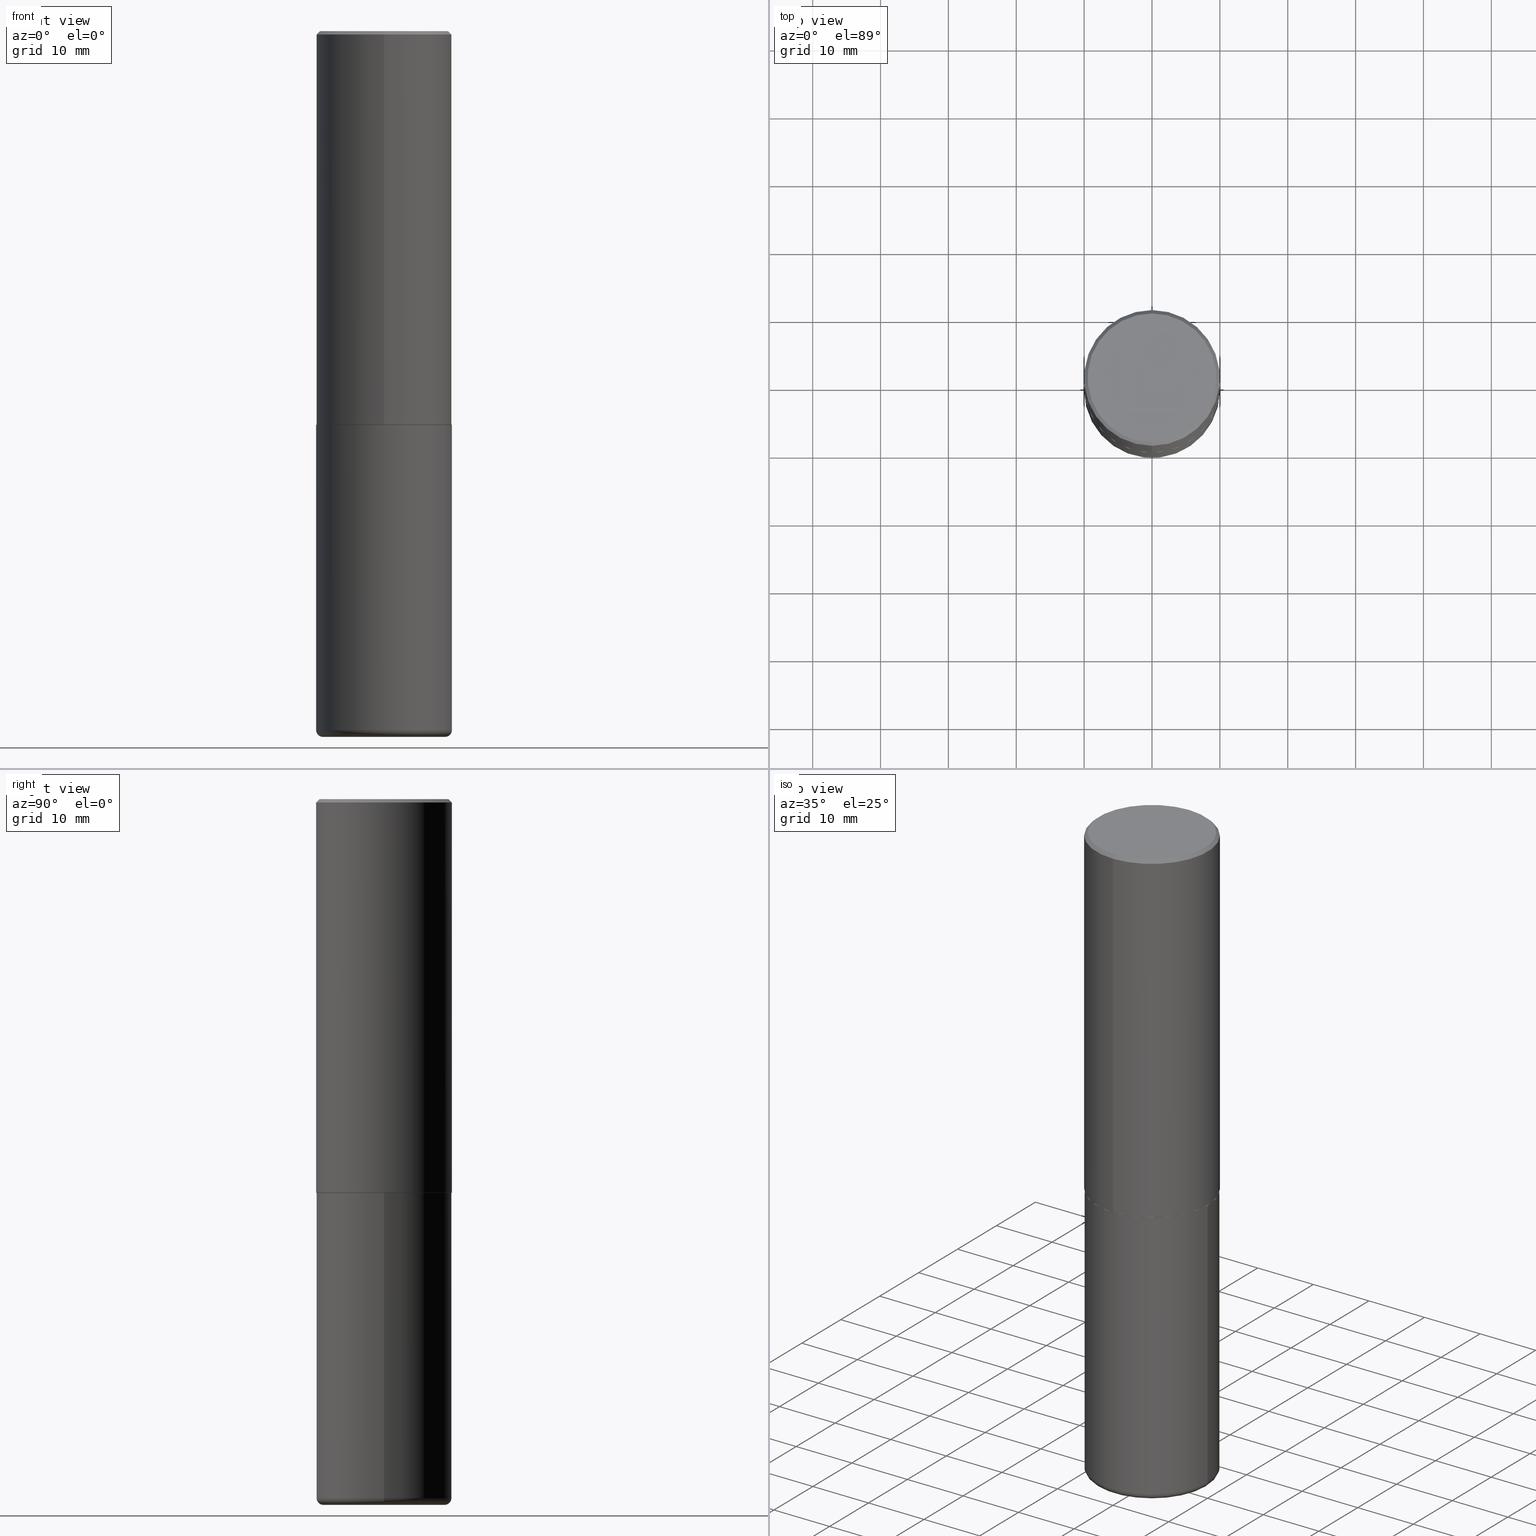
[diagram: canonical four-view strip — front | top / right | iso, engineering-drawing reading convention]
A machine part, canonical four-view strip (front | top / right | iso — engineering-drawing reading convention). The complete STEP part file that produces these views, byte-faithful:
ISO-10303-21;
HEADER;
FILE_DESCRIPTION (( 'STEP AP203' ),
    '1' );
FILE_NAME ('43453.STEP',
    '2024-03-04T04:36:43',
    ( '' ),
    ( '' ),
    'SwSTEP 2.0',
    'SolidWorks 2023',
    '' );
FILE_SCHEMA (( 'CONFIG_CONTROL_DESIGN' ));
ENDSEC;

DATA;
#1 = DATE_AND_TIME ( #300, #9 ) ;
#2 = DIRECTION ( 'NONE',  ( 6.982962677686265133E-15, 1.000000000000000000, -3.491137977679279424E-15 ) ) ;
#3 = DIRECTION ( 'NONE',  ( -4.937700262165053702E-15, -0.7071067811866175168, 0.7071067811864775177 ) ) ;
#4 = EDGE_CURVE ( 'NONE', #279, #59, #263, .T. ) ;
#5 = PERSON ( 'UNSPECIFIED', 'UNSPECIFIED', 'UNSPECIFIED', ('UNSPECIFIED'), ('UNSPECIFIED'), ('UNSPECIFIED') ) ;
#6 = CC_DESIGN_PERSON_AND_ORGANIZATION_ASSIGNMENT ( #261, #61, ( #400 ) ) ;
#7 = AXIS2_PLACEMENT_3D ( 'NONE', #329, #40, #241 ) ;
#8 = PLANE ( 'NONE',  #63 ) ;
#9 = LOCAL_TIME ( 23, 36, 43.00000000000000000, #169 ) ;
#10 = DIRECTION ( 'NONE',  ( 2.446545274162745109E-29, -3.489939775430457441E-15, -1.000000000000000000 ) ) ;
#11 = CARTESIAN_POINT ( 'NONE',  ( 5.584239588276467211E-29, -7.965787537420020215E-15, -2.282500000000000195 ) ) ;
#12 = PERSON_AND_ORGANIZATION ( #5, #218 ) ;
#13 = CARTESIAN_POINT ( 'NONE',  ( 9.916620555961347550E-29, -1.415830597714284070E-14, -4.055100000000000371 ) ) ;
#14 = AXIS2_PLACEMENT_3D ( 'NONE', #328, #304, #147 ) ;
#15 = LINE ( 'NONE', #52, #283 ) ;
#16 = CC_DESIGN_DATE_AND_TIME_ASSIGNMENT ( #239, #172, ( #293 ) ) ;
#17 =( LENGTH_UNIT ( ) NAMED_UNIT ( * ) SI_UNIT ( $, .METRE. ) );
#18 = ORIENTED_EDGE ( 'NONE', *, *, #41, .T. ) ;
#19 = ADVANCED_FACE ( 'NONE', ( #415 ), #213, .T. ) ;
#20 = CARTESIAN_POINT ( 'NONE',  ( 5.586686133550631183E-29, -7.969277477195450048E-15, -2.283500000000000529 ) ) ;
#21 = CC_DESIGN_APPROVAL ( #186, ( #293 ) ) ;
#22 = AXIS2_PLACEMENT_3D ( 'NONE', #11, #45, #152 ) ;
#23 = DIRECTION ( 'NONE',  ( -2.446545274162745389E-29, 3.489939775430457441E-15, 1.000000000000000000 ) ) ;
#24 = APPROVAL ( #324, 'UNSPECIFIED' ) ;
#25 = EDGE_LOOP ( 'NONE', ( #255, #166 ) ) ;
#26 = DIRECTION ( 'NONE',  ( 2.438088387897960049E-29, -3.491481338843145188E-15, -1.000000000000000000 ) ) ;
#27 = ORIENTED_EDGE ( 'NONE', *, *, #234, .T. ) ;
#28 = ORIENTED_EDGE ( 'NONE', *, *, #339, .F. ) ;
#29 = APPROVAL_PERSON_ORGANIZATION ( #70, #24, #35 ) ;
#30 = PERSON_AND_ORGANIZATION ( #5, #218 ) ;
#31 = ORIENTED_EDGE ( 'NONE', *, *, #405, .F. ) ;
#32 = EDGE_LOOP ( 'NONE', ( #53, #378, #290, #31 ) ) ;
#33 = ORIENTED_EDGE ( 'NONE', *, *, #258, .T. ) ;
#34 = VECTOR ( 'NONE', #197, 39.37007874015748143 ) ;
#35 = APPROVAL_ROLE ( '' ) ;
#36 = PRODUCT_DEFINITION_FORMATION_WITH_SPECIFIED_SOURCE ( 'ANY', '', #400, .NOT_KNOWN. ) ;
#37 = CARTESIAN_POINT ( 'NONE',  ( -2.632373081744935132E-15, -0.3736999999999998101, 1.504234498865758996E-15 ) ) ;
#38 = ADVANCED_FACE ( 'NONE', ( #102 ), #56, .T. ) ;
#39 = CARTESIAN_POINT ( 'NONE',  ( 2.609533152651356226E-15, 0.3736999999999998101, -1.204168491684662434E-15 ) ) ;
#40 = DIRECTION ( 'NONE',  ( -2.445468806185136597E-29, 3.491481338843145583E-15, 1.000000000000000000 ) ) ;
#41 = EDGE_CURVE ( 'NONE', #317, #233, #390, .T. ) ;
#42 = CIRCLE ( 'NONE', #150, 0.3937000000000002720 ) ;
#43 = CARTESIAN_POINT ( 'NONE',  ( -0.3937000000000001054, -1.136089922645532513E-14, -4.055100000000000371 ) ) ;
#44 = CONICAL_SURFACE ( 'NONE', #168, 0.3926999999999999935, 0.7853981633975507526 ) ;
#45 = DIRECTION ( 'NONE',  ( -2.446545274162745389E-29, 3.489939775430457441E-15, 1.000000000000000000 ) ) ;
#46 = PERSON_AND_ORGANIZATION ( #5, #218 ) ;
#47 = DIRECTION ( 'NONE',  ( -2.446545274162745389E-29, 3.489939775430457441E-15, 1.000000000000000000 ) ) ;
#48 = DIRECTION ( 'NONE',  ( 2.438088387897960049E-29, -3.491481338843145188E-15, -1.000000000000000000 ) ) ;
#49 = AXIS2_PLACEMENT_3D ( 'NONE', #134, #131, #262 ) ;
#50 = VECTOR ( 'NONE', #226, 39.37007874015748143 ) ;
#51 = CARTESIAN_POINT ( 'NONE',  ( 4.893090548325511413E-31, -6.979879550860944317E-17, -0.02000000000000008715 ) ) ;
#52 = CARTESIAN_POINT ( 'NONE',  ( 2.797406750687515181E-15, 0.3937000000000001609, -1.373989289586971557E-15 ) ) ;
#53 = ORIENTED_EDGE ( 'NONE', *, *, #110, .T. ) ;
#54 = CARTESIAN_POINT ( 'NONE',  ( 2.793854037008770686E-15, 0.3926999999999920554, -2.283500000000001862 ) ) ;
#55 = VERTEX_POINT ( 'NONE', #204 ) ;
#56 = TOROIDAL_SURFACE ( 'NONE', #205, 0.3543000000000000038, 0.03940000000000005997 ) ;
#57 = APPROVAL_PERSON_ORGANIZATION ( #232, #138, #196 ) ;
#58 = CYLINDRICAL_SURFACE ( 'NONE', #373, 0.3937000000000001609 ) ;
#59 = VERTEX_POINT ( 'NONE', #37 ) ;
#60 = CC_DESIGN_PERSON_AND_ORGANIZATION_ASSIGNMENT ( #330, #73, ( #36 ) ) ;
#61 = PERSON_AND_ORGANIZATION_ROLE ( 'design_owner' ) ;
#62 = PLANE ( 'NONE',  #282 ) ;
#63 = AXIS2_PLACEMENT_3D ( 'NONE', #39, #10, #396 ) ;
#64 = LOCAL_TIME ( 23, 36, 43.00000000000000000, #107 ) ;
#65 = DIRECTION ( 'NONE',  ( 1.000000000000000000, 0.000000000000000000, 0.000000000000000000 ) ) ;
#66 = ADVANCED_FACE ( 'NONE', ( #170 ), #299, .T. ) ;
#67 = ORIENTED_EDGE ( 'NONE', *, *, #405, .T. ) ;
#68 = COORDINATED_UNIVERSAL_TIME_OFFSET ( 5, 0, .BEHIND. ) ;
#69 = ORIENTED_EDGE ( 'NONE', *, *, #209, .T. ) ;
#70 = PERSON_AND_ORGANIZATION ( #5, #218 ) ;
#71 = CARTESIAN_POINT ( 'NONE',  ( 2.790301323329968999E-15, 0.3926999999999920554, -2.283500000000001862 ) ) ;
#72 = APPLICATION_CONTEXT ( 'configuration controlled 3d designs of mechanical parts and assemblies' ) ;
#73 = PERSON_AND_ORGANIZATION_ROLE ( 'creator' ) ;
#74 = CIRCLE ( 'NONE', #198, 0.3926999999999999935 ) ;
#75 = ORIENTED_EDGE ( 'NONE', *, *, #346, .F. ) ;
#76 = APPROVAL_DATE_TIME ( #83, #186 ) ;
#77 = CYLINDRICAL_SURFACE ( 'NONE', #7, 0.3937000000000000499 ) ;
#78 = CARTESIAN_POINT ( 'NONE',  ( -0.3543000000000000038, -1.164085306434480532E-14, -4.055100000000000371 ) ) ;
#79 = VECTOR ( 'NONE', #334, 39.37007874015748143 ) ;
#80 = MANIFOLD_SOLID_BREP ( 'Body-Move/Copy2[1]', #237 ) ;
#81 = CARTESIAN_POINT ( 'NONE',  ( -2.742209443527340799E-15, -0.3927000000000079871, -2.283499999999999197 ) ) ;
#82 = CC_DESIGN_SECURITY_CLASSIFICATION ( #293, ( #36 ) ) ;
#83 = DATE_AND_TIME ( #111, #64 ) ;
#84 = DIRECTION ( 'NONE',  ( -2.445468806185136597E-29, 3.491481338843145583E-15, 1.000000000000000000 ) ) ;
#85 = DIRECTION ( 'NONE',  ( -6.982962677686266711E-15, -1.000000000000000000, 3.491481338843145583E-15 ) ) ;
#86 = DIRECTION ( 'NONE',  ( -6.982962677686265922E-15, -1.000000000000000000, 3.489939775430457047E-15 ) ) ;
#87 = ORIENTED_EDGE ( 'NONE', *, *, #195, .F. ) ;
#88 = EDGE_CURVE ( 'NONE', #279, #383, #268, .T. ) ;
#89 = FACE_OUTER_BOUND ( 'NONE', #321, .T. ) ;
#90 = EDGE_LOOP ( 'NONE', ( #28, #347, #371, #251 ) ) ;
#91 = ADVANCED_FACE ( 'NONE', ( #229 ), #62, .F. ) ;
#92 = DIRECTION ( 'NONE',  ( -1.000000000000000000, 6.982962677686265922E-15, -4.876176775795935793E-29 ) ) ;
#93 = ORIENTED_EDGE ( 'NONE', *, *, #362, .F. ) ;
#94 = LINE ( 'NONE', #281, #50 ) ;
#95 = EDGE_LOOP ( 'NONE', ( #353, #382, #104, #200 ) ) ;
#96 = AXIS2_PLACEMENT_3D ( 'NONE', #409, #85, #256 ) ;
#97 = DIRECTION ( 'NONE',  ( 2.446545274162745389E-29, -3.489939775430457441E-15, -1.000000000000000000 ) ) ;
#98 = ORIENTED_EDGE ( 'NONE', *, *, #165, .T. ) ;
#99 = AXIS2_PLACEMENT_3D ( 'NONE', #292, #388, #418 ) ;
#100 = EDGE_CURVE ( 'NONE', #55, #123, #128, .T. ) ;
#101 = APPLICATION_PROTOCOL_DEFINITION ( 'international standard', 'config_control_design', 1994, #72 ) ;
#102 = FACE_OUTER_BOUND ( 'NONE', #380, .T. ) ;
#103 = DATE_AND_TIME ( #265, #397 ) ;
#104 = ORIENTED_EDGE ( 'NONE', *, *, #88, .T. ) ;
#105 = CARTESIAN_POINT ( 'NONE',  ( 2.749192406205083217E-15, 0.3936999999999999389, -0.02000000000000146105 ) ) ;
#106 = CLOSED_SHELL ( 'NONE', ( #288, #275, #66, #19, #413, #215, #91, #146 ) ) ;
#107 = COORDINATED_UNIVERSAL_TIME_OFFSET ( 5, 0, .BEHIND. ) ;
#108 = AXIS2_PLACEMENT_3D ( 'NONE', #403, #48, #222 ) ;
#109 = DIRECTION ( 'NONE',  ( -2.445468806185136597E-29, 3.491481338843145583E-15, 1.000000000000000000 ) ) ;
#110 = EDGE_CURVE ( 'NONE', #123, #55, #291, .T. ) ;
#111 = CALENDAR_DATE ( 2024, 3, 3 ) ;
#112 = DIRECTION ( 'NONE',  ( -2.446545274162745389E-29, 3.489939775430457441E-15, 1.000000000000000000 ) ) ;
#113 = EDGE_CURVE ( 'NONE', #185, #194, #349, .T. ) ;
#114 = DIRECTION ( 'NONE',  ( -2.445468806185136597E-29, 3.491481338843145583E-15, 1.000000000000000000 ) ) ;
#115 = AXIS2_PLACEMENT_3D ( 'NONE', #301, #97, #2 ) ;
#116 = FACE_OUTER_BOUND ( 'NONE', #32, .T. ) ;
#117 = DIRECTION ( 'NONE',  ( -6.982962677686265133E-15, -1.000000000000000000, 3.478288761986584267E-15 ) ) ;
#118 = DIRECTION ( 'NONE',  ( -2.446545274162745389E-29, 3.489939775430457441E-15, 1.000000000000000000 ) ) ;
#119 = UNCERTAINTY_MEASURE_WITH_UNIT (LENGTH_MEASURE( 1.000000000000000082E-05 ), #297, 'distance_accuracy_value', 'NONE');
#120 = EDGE_LOOP ( 'NONE', ( #298, #132 ) ) ;
#121 = EDGE_CURVE ( 'NONE', #55, #185, #359, .T. ) ;
#122 = DIRECTION ( 'NONE',  ( -2.446545274162745389E-29, 3.489939775430457441E-15, 1.000000000000000000 ) ) ;
#123 = VERTEX_POINT ( 'NONE', #242 ) ;
#124 = FACE_OUTER_BOUND ( 'NONE', #260, .T. ) ;
#125 = ORIENTED_EDGE ( 'NONE', *, *, #163, .F. ) ;
#126 = CARTESIAN_POINT ( 'NONE',  ( 0.000000000000000000, 0.000000000000000000, 0.000000000000000000 ) ) ;
#127 = ORIENTED_EDGE ( 'NONE', *, *, #234, .F. ) ;
#128 = CIRCLE ( 'NONE', #326, 0.3543000000000001148 ) ;
#129 = AXIS2_PLACEMENT_3D ( 'NONE', #173, #363, #368 ) ;
#130 = CARTESIAN_POINT ( 'NONE',  ( 0.000000000000000000, 0.000000000000000000, 0.000000000000000000 ) ) ;
#131 = DIRECTION ( 'NONE',  ( 2.446545274162745389E-29, -3.489939775430457441E-15, -1.000000000000000000 ) ) ;
#132 = ORIENTED_EDGE ( 'NONE', *, *, #258, .F. ) ;
#133 =( NAMED_UNIT ( * ) SI_UNIT ( $, .STERADIAN. ) SOLID_ANGLE_UNIT ( ) );
#134 = CARTESIAN_POINT ( 'NONE',  ( 4.893090548325511413E-31, -6.979879550860944317E-17, -0.02000000000000008715 ) ) ;
#135 = VECTOR ( 'NONE', #142, 39.37007874015748143 ) ;
#136 = AXIS2_PLACEMENT_3D ( 'NONE', #377, #23, #86 ) ;
#137 = COORDINATED_UNIVERSAL_TIME_OFFSET ( 5, 0, .BEHIND. ) ;
#138 = APPROVAL ( #352, 'UNSPECIFIED' ) ;
#139 =( NAMED_UNIT ( * ) PLANE_ANGLE_UNIT ( ) SI_UNIT ( $, .RADIAN. ) );
#140 = ORIENTED_EDGE ( 'NONE', *, *, #254, .T. ) ;
#141 = SECURITY_CLASSIFICATION_LEVEL ( 'unclassified' ) ;
#142 = DIRECTION ( 'NONE',  ( -2.445468806185136877E-29, 3.491481338843145188E-15, 1.000000000000000000 ) ) ;
#143 = DESIGN_CONTEXT ( 'detailed design', #72, 'design' ) ;
#144 = AXIS2_PLACEMENT_3D ( 'NONE', #130, #203, #65 ) ;
#145 = LINE ( 'NONE', #179, #79 ) ;
#146 = ADVANCED_FACE ( 'NONE', ( #302 ), #8, .F. ) ;
#147 = DIRECTION ( 'NONE',  ( -6.982962677686265133E-15, -1.000000000000000000, 3.478288761986584267E-15 ) ) ;
#148 = APPROVAL_ROLE ( '' ) ;
#149 = CARTESIAN_POINT ( 'NONE',  ( 5.584239588276467211E-29, -7.965787537420020215E-15, -2.282500000000000195 ) ) ;
#150 = AXIS2_PLACEMENT_3D ( 'NONE', #149, #395, #271 ) ;
#151 = EDGE_CURVE ( 'NONE', #185, #375, #145, .T. ) ;
#152 = DIRECTION ( 'NONE',  ( -6.982962677686265922E-15, -1.000000000000000000, 3.469453890861393601E-15 ) ) ;
#153 = FACE_OUTER_BOUND ( 'NONE', #351, .T. ) ;
#154 = ORIENTED_EDGE ( 'NONE', *, *, #209, .F. ) ;
#155 = CC_DESIGN_PERSON_AND_ORGANIZATION_ASSIGNMENT ( #46, #394, ( #293 ) ) ;
#156 = DIRECTION ( 'NONE',  ( -6.982962677686265133E-15, -1.000000000000000000, 3.478288761986584267E-15 ) ) ;
#157 = LOCAL_TIME ( 23, 36, 43.00000000000000000, #206 ) ;
#158 = DIRECTION ( 'NONE',  ( -2.446545274162745389E-29, 3.489939775430457441E-15, 1.000000000000000000 ) ) ;
#159 = CARTESIAN_POINT ( 'NONE',  ( 0.000000000000000000, 0.000000000000000000, 0.000000000000000000 ) ) ;
#160 = ORIENTED_EDGE ( 'NONE', *, *, #151, .T. ) ;
#161 = EDGE_LOOP ( 'NONE', ( #167, #314 ) ) ;
#162 = AXIS2_PLACEMENT_3D ( 'NONE', #309, #109, #331 ) ;
#163 = EDGE_CURVE ( 'NONE', #384, #233, #42, .T. ) ;
#164 = DIRECTION ( 'NONE',  ( -2.446545274162745109E-29, 3.489939775430457441E-15, 1.000000000000000000 ) ) ;
#165 = EDGE_CURVE ( 'NONE', #375, #266, #336, .T. ) ;
#166 = ORIENTED_EDGE ( 'NONE', *, *, #100, .F. ) ;
#167 = ORIENTED_EDGE ( 'NONE', *, *, #4, .T. ) ;
#168 = AXIS2_PLACEMENT_3D ( 'NONE', #20, #379, #156 ) ;
#169 = COORDINATED_UNIVERSAL_TIME_OFFSET ( 5, 0, .BEHIND. ) ;
#170 = FACE_OUTER_BOUND ( 'NONE', #408, .T. ) ;
#171 = DIRECTION ( 'NONE',  ( 1.000000000000000000, -6.982962677686265133E-15, 0.000000000000000000 ) ) ;
#172 = DATE_TIME_ROLE ( 'classification_date' ) ;
#173 = CARTESIAN_POINT ( 'NONE',  ( 9.916620555961347550E-29, -1.415830597714284070E-14, -4.055100000000000371 ) ) ;
#174 = VECTOR ( 'NONE', #236, 39.37007874015748143 ) ;
#175 = CARTESIAN_POINT ( 'NONE',  ( 0.3937000000000001054, -1.690749838334792550E-14, -4.055100000000000371 ) ) ;
#176 = ADVANCED_FACE ( 'NONE', ( #116 ), #385, .T. ) ;
#177 = FACE_OUTER_BOUND ( 'NONE', #257, .T. ) ;
#178 = CALENDAR_DATE ( 2024, 3, 3 ) ;
#179 = CARTESIAN_POINT ( 'NONE',  ( -0.3937000000000000499, 2.797406750687514786E-15, -1.936584745033356735E-29 ) ) ;
#180 = DIMENSIONAL_EXPONENTS ( 1.000000000000000000, 0.000000000000000000, 0.000000000000000000, 0.000000000000000000, 0.000000000000000000, 0.000000000000000000, 0.000000000000000000 ) ;
#181 = AXIS2_PLACEMENT_3D ( 'NONE', #212, #269, #171 ) ;
#182 = CARTESIAN_POINT ( 'NONE',  ( 4.893090548325511413E-31, -6.979879550860944317E-17, -0.02000000000000008715 ) ) ;
#183 = CC_DESIGN_PERSON_AND_ORGANIZATION_ASSIGNMENT ( #214, #367, ( #36 ) ) ;
#184 = EDGE_CURVE ( 'NONE', #410, #384, #244, .T. ) ;
#185 = VERTEX_POINT ( 'NONE', #43 ) ;
#186 = APPROVAL ( #267, 'UNSPECIFIED' ) ;
#187 = CARTESIAN_POINT ( 'NONE',  ( -4.894167145371975089E-45, 6.981415291439400794E-31, 2.000440047873977323E-16 ) ) ;
#188 = ORIENTED_EDGE ( 'NONE', *, *, #113, .T. ) ;
#189 = DIRECTION ( 'NONE',  ( -6.982962677686265922E-15, -1.000000000000000000, 3.489939775430457441E-15 ) ) ;
#190 = ORIENTED_EDGE ( 'NONE', *, *, #184, .F. ) ;
#191 = CIRCLE ( 'NONE', #96, 0.03940000000000005997 ) ;
#192 = AXIS2_PLACEMENT_3D ( 'NONE', #333, #112, #277 ) ;
#193 = DIRECTION ( 'NONE',  ( -2.446545274162745389E-29, 3.489939775430457441E-15, 1.000000000000000000 ) ) ;
#194 = VERTEX_POINT ( 'NONE', #175 ) ;
#195 = EDGE_CURVE ( 'NONE', #233, #384, #411, .T. ) ;
#196 = APPROVAL_ROLE ( '' ) ;
#197 = DIRECTION ( 'NONE',  ( 5.024295867788576727E-15, 0.7071067811866224018, 0.7071067811864726327 ) ) ;
#198 = AXIS2_PLACEMENT_3D ( 'NONE', #308, #47, #117 ) ;
#199 = APPLICATION_PROTOCOL_DEFINITION ( 'international standard', 'config_control_design', 1994, #228 ) ;
#200 = ORIENTED_EDGE ( 'NONE', *, *, #319, .T. ) ;
#201 = APPROVAL_DATE_TIME ( #381, #138 ) ;
#202 = EDGE_LOOP ( 'NONE', ( #140, #160, #127, #154 ) ) ;
#203 = DIRECTION ( 'NONE',  ( 0.000000000000000000, 0.000000000000000000, 1.000000000000000000 ) ) ;
#204 = CARTESIAN_POINT ( 'NONE',  ( -0.3543000000000001148, -1.156965832777527483E-14, -4.094500000000000028 ) ) ;
#205 = AXIS2_PLACEMENT_3D ( 'NONE', #235, #355, #358 ) ;
#206 = COORDINATED_UNIVERSAL_TIME_OFFSET ( 5, 0, .BEHIND. ) ;
#207 = LINE ( 'NONE', #364, #135 ) ;
#208 = SHAPE_DEFINITION_REPRESENTATION ( #287, #376 ) ;
#209 = EDGE_CURVE ( 'NONE', #194, #266, #207, .T. ) ;
#210 = CARTESIAN_POINT ( 'NONE',  ( 1.001297202692504215E-28, -1.429587034189326149E-14, -4.094500000000000028 ) ) ;
#211 = DIRECTION ( 'NONE',  ( 7.105427357601001859E-15, 1.000000000000000000, -3.491481338843145583E-15 ) ) ;
#212 = CARTESIAN_POINT ( 'NONE',  ( 5.584228018923760468E-29, -7.972797637248324710E-15, -2.283500000000000529 ) ) ;
#213 = CONICAL_SURFACE ( 'NONE', #49, 0.3937000000000000499, 0.7853981633974460586 ) ;
#214 = PERSON_AND_ORGANIZATION ( #5, #218 ) ;
#215 = ADVANCED_FACE ( 'NONE', ( #177 ), #366, .T. ) ;
#216 = DIRECTION ( 'NONE',  ( 1.000000000000000000, -6.982962677686264344E-15, 0.000000000000000000 ) ) ;
#217 = PLANE ( 'NONE',  #249 ) ;
#218 = ORGANIZATION ( 'UNSPECIFIED', 'UNSPECIFIED', '' ) ;
#219 = CARTESIAN_POINT ( 'NONE',  ( -2.742209443527340799E-15, -0.3927000000000079871, -2.283499999999999197 ) ) ;
#220 = ORIENTED_EDGE ( 'NONE', *, *, #88, .F. ) ;
#221 = ADVANCED_FACE ( 'NONE', ( #361 ), #77, .T. ) ;
#222 = DIRECTION ( 'NONE',  ( -1.000000000000000000, 6.982962677686265922E-15, -4.876176775795935793E-29 ) ) ;
#223 = ORIENTED_EDGE ( 'NONE', *, *, #238, .T. ) ;
#224 = DIRECTION ( 'NONE',  ( -2.446545274162745389E-29, 3.489939775430457441E-15, 1.000000000000000000 ) ) ;
#225 = ORIENTED_EDGE ( 'NONE', *, *, #339, .T. ) ;
#226 = DIRECTION ( 'NONE',  ( -4.851104656540952442E-15, -0.7071067811865483499, -0.7071067811865466846 ) ) ;
#227 = ORIENTED_EDGE ( 'NONE', *, *, #151, .F. ) ;
#228 = APPLICATION_CONTEXT ( 'configuration controlled 3d designs of mechanical parts and assemblies' ) ;
#229 = FACE_OUTER_BOUND ( 'NONE', #120, .T. ) ;
#230 = ORIENTED_EDGE ( 'NONE', *, *, #163, .T. ) ;
#231 = CIRCLE ( 'NONE', #312, 0.3937000000000000499 ) ;
#232 = PERSON_AND_ORGANIZATION ( #5, #218 ) ;
#233 = VERTEX_POINT ( 'NONE', #399 ) ;
#234 = EDGE_CURVE ( 'NONE', #266, #375, #305, .T. ) ;
#235 = CARTESIAN_POINT ( 'NONE',  ( 9.916620555961347550E-29, -1.415830597714284070E-14, -4.055100000000000371 ) ) ;
#236 = DIRECTION ( 'NONE',  ( 4.937700262164536209E-15, 0.7071067811865434649, -0.7071067811865515695 ) ) ;
#237 = CLOSED_SHELL ( 'NONE', ( #221, #176, #272, #280, #38, #303 ) ) ;
#238 = EDGE_CURVE ( 'NONE', #410, #317, #306, .T. ) ;
#239 = DATE_AND_TIME ( #178, #157 ) ;
#240 = DIRECTION ( 'NONE',  ( 1.000000000000000000, -6.982962677686267499E-15, 0.000000000000000000 ) ) ;
#241 = DIRECTION ( 'NONE',  ( 1.000000000000000000, -6.982962677686265922E-15, 4.876176775795935793E-29 ) ) ;
#242 = CARTESIAN_POINT ( 'NONE',  ( 0.3543000000000001148, -1.676993401859750628E-14, -4.094500000000000028 ) ) ;
#243 = APPROVAL_DATE_TIME ( #1, #24 ) ;
#244 = LINE ( 'NONE', #81, #389 ) ;
#245 = DIRECTION ( 'NONE',  ( 1.000000000000000000, -6.982962677686264344E-15, 0.000000000000000000 ) ) ;
#246 = CARTESIAN_POINT ( 'NONE',  ( -2.749192406205029180E-15, -0.3937000000000082656, -2.282499999999998863 ) ) ;
#247 = ORIENTED_EDGE ( 'NONE', *, *, #121, .F. ) ;
#248 = AXIS2_PLACEMENT_3D ( 'NONE', #13, #369, #240 ) ;
#249 = AXIS2_PLACEMENT_3D ( 'NONE', #407, #26, #92 ) ;
#250 = LENGTH_MEASURE_WITH_UNIT ( LENGTH_MEASURE( 0.02539999999999999897 ), #17 );
#251 = ORIENTED_EDGE ( 'NONE', *, *, #319, .F. ) ;
#252 = LINE ( 'NONE', #406, #337 ) ;
#253 = DIRECTION ( 'NONE',  ( -6.982962677686265133E-15, -1.000000000000000000, 3.491137977679279424E-15 ) ) ;
#254 = EDGE_CURVE ( 'NONE', #194, #185, #387, .T. ) ;
#255 = ORIENTED_EDGE ( 'NONE', *, *, #110, .F. ) ;
#256 = DIRECTION ( 'NONE',  ( 1.000000000000000000, -6.982962677686267499E-15, 0.000000000000000000 ) ) ;
#257 = EDGE_LOOP ( 'NONE', ( #343, #33, #323, #87 ) ) ;
#258 = EDGE_CURVE ( 'NONE', #317, #410, #74, .T. ) ;
#259 = EDGE_LOOP ( 'NONE', ( #227, #188, #69, #325 ) ) ;
#260 = EDGE_LOOP ( 'NONE', ( #223, #18, #125, #190 ) ) ;
#261 = PERSON_AND_ORGANIZATION ( #5, #218 ) ;
#262 = DIRECTION ( 'NONE',  ( 6.982962677686265133E-15, 1.000000000000000000, -3.491137977679279424E-15 ) ) ;
#263 = CIRCLE ( 'NONE', #99, 0.3736999999999998101 ) ;
#264 = APPROVAL_PERSON_ORGANIZATION ( #12, #186, #148 ) ;
#265 = CALENDAR_DATE ( 2024, 3, 3 ) ;
#266 = VERTEX_POINT ( 'NONE', #285 ) ;
#267 = APPROVAL_STATUS ( 'not_yet_approved' ) ;
#268 = LINE ( 'NONE', #105, #174 ) ;
#269 = DIRECTION ( 'NONE',  ( -2.445468806185136597E-29, 3.491481338843145583E-15, 1.000000000000000000 ) ) ;
#270 = CIRCLE ( 'NONE', #404, 0.3736999999999998101 ) ;
#271 = DIRECTION ( 'NONE',  ( -6.982962677686265922E-15, -1.000000000000000000, 3.469453890861393601E-15 ) ) ;
#272 = ADVANCED_FACE ( 'NONE', ( #153 ), #217, .F. ) ;
#273 = CARTESIAN_POINT ( 'NONE',  ( 5.584228018923760468E-29, -7.972797637248324710E-15, -2.283500000000000529 ) ) ;
#274 = DIRECTION ( 'NONE',  ( -2.445468806185136597E-29, 3.491481338843145583E-15, 1.000000000000000000 ) ) ;
#275 = ADVANCED_FACE ( 'NONE', ( #89 ), #58, .T. ) ;
#276 = AXIS2_PLACEMENT_3D ( 'NONE', #159, #311, #310 ) ;
#277 = DIRECTION ( 'NONE',  ( -6.982962677686265133E-15, -1.000000000000000000, 3.478288761986584267E-15 ) ) ;
#278 = DIRECTION ( 'NONE',  ( -6.982962677686265133E-15, -1.000000000000000000, 3.491137977679279424E-15 ) ) ;
#279 = VERTEX_POINT ( 'NONE', #338 ) ;
#280 = ADVANCED_FACE ( 'NONE', ( #340 ), #342, .T. ) ;
#281 = CARTESIAN_POINT ( 'NONE',  ( -2.700978061722651252E-15, -0.3937000000000001054, -0.01999999999999870978 ) ) ;
#282 = AXIS2_PLACEMENT_3D ( 'NONE', #320, #164, #294 ) ;
#283 = VECTOR ( 'NONE', #224, 39.37007874015748143 ) ;
#284 = DIRECTION ( 'NONE',  ( -2.446545274162745389E-29, 3.489939775430457441E-15, 1.000000000000000000 ) ) ;
#285 = CARTESIAN_POINT ( 'NONE',  ( 0.3937000000000000499, -1.072199004345340635E-14, -2.283500000000000529 ) ) ;
#286 = ORIENTED_EDGE ( 'NONE', *, *, #113, .F. ) ;
#287 = PRODUCT_DEFINITION_SHAPE ( 'NONE', 'NONE',  #348 ) ;
#288 = ADVANCED_FACE ( 'NONE', ( #124 ), #44, .T. ) ;
#289 = FACE_OUTER_BOUND ( 'NONE', #25, .T. ) ;
#290 = ORIENTED_EDGE ( 'NONE', *, *, #254, .F. ) ;
#291 = CIRCLE ( 'NONE', #332, 0.3543000000000001148 ) ;
#292 = CARTESIAN_POINT ( 'NONE',  ( -4.894167145371975089E-45, 6.981415291439400794E-31, 2.000440047873977323E-16 ) ) ;
#293 = SECURITY_CLASSIFICATION ( '', '', #141 ) ;
#294 = DIRECTION ( 'NONE',  ( -6.982962677686265922E-15, -1.000000000000000000, 3.489939775430457441E-15 ) ) ;
#295 = CC_DESIGN_DATE_AND_TIME_ASSIGNMENT ( #103, #354, ( #348 ) ) ;
#296 = ORIENTED_EDGE ( 'NONE', *, *, #100, .T. ) ;
#297 =( CONVERSION_BASED_UNIT ( 'INCH', #250 ) LENGTH_UNIT ( ) NAMED_UNIT ( #180 ) );
#298 = ORIENTED_EDGE ( 'NONE', *, *, #238, .F. ) ;
#299 = CONICAL_SURFACE ( 'NONE', #115, 0.3937000000000000499, 0.7853981633974460586 ) ;
#300 = CALENDAR_DATE ( 2024, 3, 3 ) ;
#301 = CARTESIAN_POINT ( 'NONE',  ( 4.893090548325511413E-31, -6.979879550860944317E-17, -0.02000000000000008715 ) ) ;
#302 = FACE_OUTER_BOUND ( 'NONE', #161, .T. ) ;
#303 = ADVANCED_FACE ( 'NONE', ( #289 ), #335, .T. ) ;
#304 = DIRECTION ( 'NONE',  ( -2.446545274162745389E-29, 3.489939775430457441E-15, 1.000000000000000000 ) ) ;
#305 = CIRCLE ( 'NONE', #365, 0.3937000000000000499 ) ;
#306 = CIRCLE ( 'NONE', #14, 0.3926999999999999935 ) ;
#307 = DIRECTION ( 'NONE',  ( 1.000000000000000000, -6.982962677686265133E-15, 0.000000000000000000 ) ) ;
#308 = CARTESIAN_POINT ( 'NONE',  ( 5.586686133550631183E-29, -7.969277477195450048E-15, -2.283500000000000529 ) ) ;
#309 = CARTESIAN_POINT ( 'NONE',  ( 9.916620555961347550E-29, -1.415830597714284070E-14, -4.055100000000000371 ) ) ;
#310 = DIRECTION ( 'NONE',  ( 1.000000000000000000, -6.982962677686265922E-15, 4.876176775795935793E-29 ) ) ;
#311 = DIRECTION ( 'NONE',  ( -2.445468806185136597E-29, 3.491481338843145583E-15, 1.000000000000000000 ) ) ;
#312 = AXIS2_PLACEMENT_3D ( 'NONE', #182, #284, #278 ) ;
#313 = CARTESIAN_POINT ( 'NONE',  ( -2.700978061722651252E-15, -0.3937000000000001054, -0.01999999999999870978 ) ) ;
#314 = ORIENTED_EDGE ( 'NONE', *, *, #362, .T. ) ;
#315 = DIRECTION ( 'NONE',  ( -6.982962677686265922E-15, -1.000000000000000000, 3.489939775430457047E-15 ) ) ;
#316 = ORIENTED_EDGE ( 'NONE', *, *, #346, .T. ) ;
#317 = VERTEX_POINT ( 'NONE', #54 ) ;
#318 = AXIS2_PLACEMENT_3D ( 'NONE', #51, #158, #253 ) ;
#319 = EDGE_CURVE ( 'NONE', #383, #391, #350, .T. ) ;
#320 = CARTESIAN_POINT ( 'NONE',  ( 5.586686133550631183E-29, -7.969277477195450048E-15, -2.283500000000000529 ) ) ;
#321 = EDGE_LOOP ( 'NONE', ( #230, #225, #75, #402 ) ) ;
#322 = PERSON_AND_ORGANIZATION_ROLE ( 'creator' ) ;
#323 = ORIENTED_EDGE ( 'NONE', *, *, #184, .T. ) ;
#324 = APPROVAL_STATUS ( 'not_yet_approved' ) ;
#325 = ORIENTED_EDGE ( 'NONE', *, *, #165, .F. ) ;
#326 = AXIS2_PLACEMENT_3D ( 'NONE', #414, #84, #216 ) ;
#327 =( GEOMETRIC_REPRESENTATION_CONTEXT ( 3 ) GLOBAL_UNCERTAINTY_ASSIGNED_CONTEXT ( ( #119 ) ) GLOBAL_UNIT_ASSIGNED_CONTEXT ( ( #297, #139, #133 ) ) REPRESENTATION_CONTEXT ( 'NONE', 'WORKASPACE' ) );
#328 = CARTESIAN_POINT ( 'NONE',  ( 5.586686133550631183E-29, -7.969277477195450048E-15, -2.283500000000000529 ) ) ;
#329 = CARTESIAN_POINT ( 'NONE',  ( 0.000000000000000000, 0.000000000000000000, 0.000000000000000000 ) ) ;
#330 = PERSON_AND_ORGANIZATION ( #5, #218 ) ;
#331 = DIRECTION ( 'NONE',  ( 1.000000000000000000, -6.982962677686266711E-15, 4.883557194083112340E-29 ) ) ;
#332 = AXIS2_PLACEMENT_3D ( 'NONE', #210, #114, #245 ) ;
#333 = CARTESIAN_POINT ( 'NONE',  ( 5.586686133550631183E-29, -7.969277477195450048E-15, -2.283500000000000529 ) ) ;
#334 = DIRECTION ( 'NONE',  ( -2.445468806185136877E-29, 3.491481338843145188E-15, 1.000000000000000000 ) ) ;
#335 = PLANE ( 'NONE',  #108 ) ;
#336 = CIRCLE ( 'NONE', #181, 0.3937000000000000499 ) ;
#337 = VECTOR ( 'NONE', #193, 39.37007874015748143 ) ;
#338 = CARTESIAN_POINT ( 'NONE',  ( 2.679362779428219524E-15, 0.3736999999999998101, -1.104146489290963581E-15 ) ) ;
#339 = EDGE_CURVE ( 'NONE', #233, #383, #15, .T. ) ;
#340 = FACE_OUTER_BOUND ( 'NONE', #259, .T. ) ;
#341 = PRODUCT_RELATED_PRODUCT_CATEGORY ( 'detail', '', ( #400 ) ) ;
#342 = CYLINDRICAL_SURFACE ( 'NONE', #276, 0.3937000000000000499 ) ;
#343 = ORIENTED_EDGE ( 'NONE', *, *, #41, .F. ) ;
#344 = LOCAL_TIME ( 23, 36, 43.00000000000000000, #68 ) ;
#345 = CARTESIAN_POINT ( 'NONE',  ( -0.3937000000000000499, -8.268145056508067919E-15, -2.283500000000000529 ) ) ;
#346 = EDGE_CURVE ( 'NONE', #391, #383, #231, .T. ) ;
#347 = ORIENTED_EDGE ( 'NONE', *, *, #195, .T. ) ;
#348 = PRODUCT_DEFINITION ( 'UNKNOWN', '', #36, #143 ) ;
#349 = CIRCLE ( 'NONE', #248, 0.3937000000000000499 ) ;
#350 = CIRCLE ( 'NONE', #318, 0.3937000000000000499 ) ;
#351 = EDGE_LOOP ( 'NONE', ( #27, #98 ) ) ;
#352 = APPROVAL_STATUS ( 'not_yet_approved' ) ;
#353 = ORIENTED_EDGE ( 'NONE', *, *, #372, .F. ) ;
#354 = DATE_TIME_ROLE ( 'creation_date' ) ;
#355 = DIRECTION ( 'NONE',  ( -2.445468806185136597E-29, 3.491481338843145583E-15, 1.000000000000000000 ) ) ;
#356 = EDGE_CURVE ( 'NONE', #384, #391, #252, .T. ) ;
#357 = MANIFOLD_SOLID_BREP ( 'Body-Move/Copy2[2]', #106 ) ;
#358 = DIRECTION ( 'NONE',  ( 1.000000000000000000, -6.982962677686266711E-15, 4.883557194083112340E-29 ) ) ;
#359 = CIRCLE ( 'NONE', #392, 0.03940000000000005997 ) ;
#360 = CC_DESIGN_APPROVAL ( #24, ( #36 ) ) ;
#361 = FACE_OUTER_BOUND ( 'NONE', #202, .T. ) ;
#362 = EDGE_CURVE ( 'NONE', #59, #279, #270, .T. ) ;
#363 = DIRECTION ( 'NONE',  ( -2.445468806185136597E-29, 3.491481338843145583E-15, 1.000000000000000000 ) ) ;
#364 = CARTESIAN_POINT ( 'NONE',  ( 0.3937000000000000499, -2.749192406205083217E-15, 1.919750796630860172E-29 ) ) ;
#365 = AXIS2_PLACEMENT_3D ( 'NONE', #273, #274, #307 ) ;
#366 = CONICAL_SURFACE ( 'NONE', #192, 0.3926999999999999935, 0.7853981633975507526 ) ;
#367 = PERSON_AND_ORGANIZATION_ROLE ( 'design_supplier' ) ;
#368 = DIRECTION ( 'NONE',  ( 1.000000000000000000, -6.982962677686267499E-15, 0.000000000000000000 ) ) ;
#369 = DIRECTION ( 'NONE',  ( -2.445468806185136597E-29, 3.491481338843145583E-15, 1.000000000000000000 ) ) ;
#370 = FACE_OUTER_BOUND ( 'NONE', #90, .T. ) ;
#371 = ORIENTED_EDGE ( 'NONE', *, *, #356, .T. ) ;
#372 = EDGE_CURVE ( 'NONE', #59, #391, #94, .T. ) ;
#373 = AXIS2_PLACEMENT_3D ( 'NONE', #126, #118, #315 ) ;
#374 = CYLINDRICAL_SURFACE ( 'NONE', #136, 0.3937000000000001609 ) ;
#375 = VERTEX_POINT ( 'NONE', #345 ) ;
#376 = ADVANCED_BREP_SHAPE_REPRESENTATION ( '43453', ( #80, #357, #144 ), #327 ) ;
#377 = CARTESIAN_POINT ( 'NONE',  ( 0.000000000000000000, 0.000000000000000000, 0.000000000000000000 ) ) ;
#378 = ORIENTED_EDGE ( 'NONE', *, *, #121, .T. ) ;
#379 = DIRECTION ( 'NONE',  ( -2.446545274162745389E-29, 3.489939775430457441E-15, 1.000000000000000000 ) ) ;
#380 = EDGE_LOOP ( 'NONE', ( #247, #296, #67, #286 ) ) ;
#381 = DATE_AND_TIME ( #416, #344 ) ;
#382 = ORIENTED_EDGE ( 'NONE', *, *, #4, .F. ) ;
#383 = VERTEX_POINT ( 'NONE', #401 ) ;
#384 = VERTEX_POINT ( 'NONE', #246 ) ;
#385 = TOROIDAL_SURFACE ( 'NONE', #162, 0.3543000000000000038, 0.03940000000000005997 ) ;
#386 = MECHANICAL_CONTEXT ( 'NONE', #228, 'mechanical' ) ;
#387 = CIRCLE ( 'NONE', #129, 0.3937000000000000499 ) ;
#388 = DIRECTION ( 'NONE',  ( -2.446545274162745389E-29, 3.489939775430457441E-15, 1.000000000000000000 ) ) ;
#389 = VECTOR ( 'NONE', #3, 39.37007874015748143 ) ;
#390 = LINE ( 'NONE', #71, #34 ) ;
#391 = VERTEX_POINT ( 'NONE', #313 ) ;
#392 = AXIS2_PLACEMENT_3D ( 'NONE', #78, #211, #393 ) ;
#393 = DIRECTION ( 'NONE',  ( -1.000000000000000000, 7.105427357601014480E-15, 0.000000000000000000 ) ) ;
#394 = PERSON_AND_ORGANIZATION_ROLE ( 'classification_officer' ) ;
#395 = DIRECTION ( 'NONE',  ( -2.446545274162745389E-29, 3.489939775430457441E-15, 1.000000000000000000 ) ) ;
#396 = DIRECTION ( 'NONE',  ( 6.982962677686265922E-15, 1.000000000000000000, -3.489939775430457441E-15 ) ) ;
#397 = LOCAL_TIME ( 23, 36, 43.00000000000000000, #137 ) ;
#398 = CC_DESIGN_PERSON_AND_ORGANIZATION_ASSIGNMENT ( #30, #322, ( #348 ) ) ;
#399 = CARTESIAN_POINT ( 'NONE',  ( 2.797406750687543580E-15, 0.3936999999999923339, -2.282500000000001528 ) ) ;
#400 = PRODUCT ( '43453', '43453', '', ( #386 ) ) ;
#401 = CARTESIAN_POINT ( 'NONE',  ( 2.749192406205083217E-15, 0.3936999999999999389, -0.02000000000000146105 ) ) ;
#402 = ORIENTED_EDGE ( 'NONE', *, *, #356, .F. ) ;
#403 = CARTESIAN_POINT ( 'NONE',  ( 1.001297202692504215E-28, -1.429587034189326149E-14, -4.094500000000000028 ) ) ;
#404 = AXIS2_PLACEMENT_3D ( 'NONE', #187, #122, #189 ) ;
#405 = EDGE_CURVE ( 'NONE', #123, #194, #191, .T. ) ;
#406 = CARTESIAN_POINT ( 'NONE',  ( -2.749192406205084005E-15, -0.3937000000000001609, 1.373989289586971557E-15 ) ) ;
#407 = CARTESIAN_POINT ( 'NONE',  ( 5.584228018923760468E-29, -7.972797637248324710E-15, -2.283500000000000529 ) ) ;
#408 = EDGE_LOOP ( 'NONE', ( #93, #412, #316, #220 ) ) ;
#409 = CARTESIAN_POINT ( 'NONE',  ( 0.3543000000000000038, -1.663236965384708391E-14, -4.055100000000000371 ) ) ;
#410 = VERTEX_POINT ( 'NONE', #219 ) ;
#411 = CIRCLE ( 'NONE', #22, 0.3937000000000002720 ) ;
#412 = ORIENTED_EDGE ( 'NONE', *, *, #372, .T. ) ;
#413 = ADVANCED_FACE ( 'NONE', ( #370 ), #374, .T. ) ;
#414 = CARTESIAN_POINT ( 'NONE',  ( 1.001297202692504215E-28, -1.429587034189326149E-14, -4.094500000000000028 ) ) ;
#415 = FACE_OUTER_BOUND ( 'NONE', #95, .T. ) ;
#416 = CALENDAR_DATE ( 2024, 3, 3 ) ;
#417 = CC_DESIGN_APPROVAL ( #138, ( #348 ) ) ;
#418 = DIRECTION ( 'NONE',  ( -6.982962677686265922E-15, -1.000000000000000000, 3.489939775430457441E-15 ) ) ;
ENDSEC;
END-ISO-10303-21;
